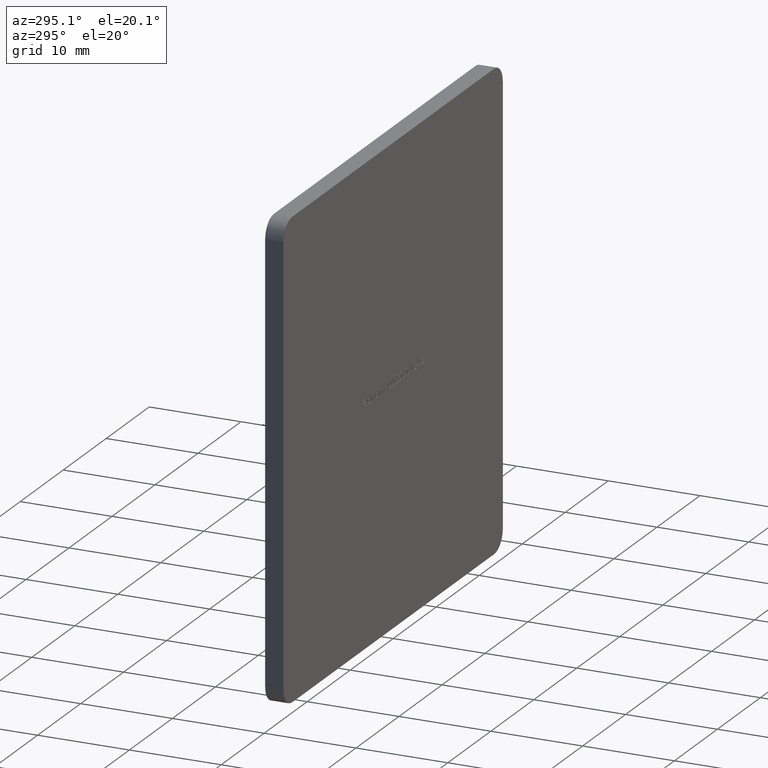
[diagram: clean part render]
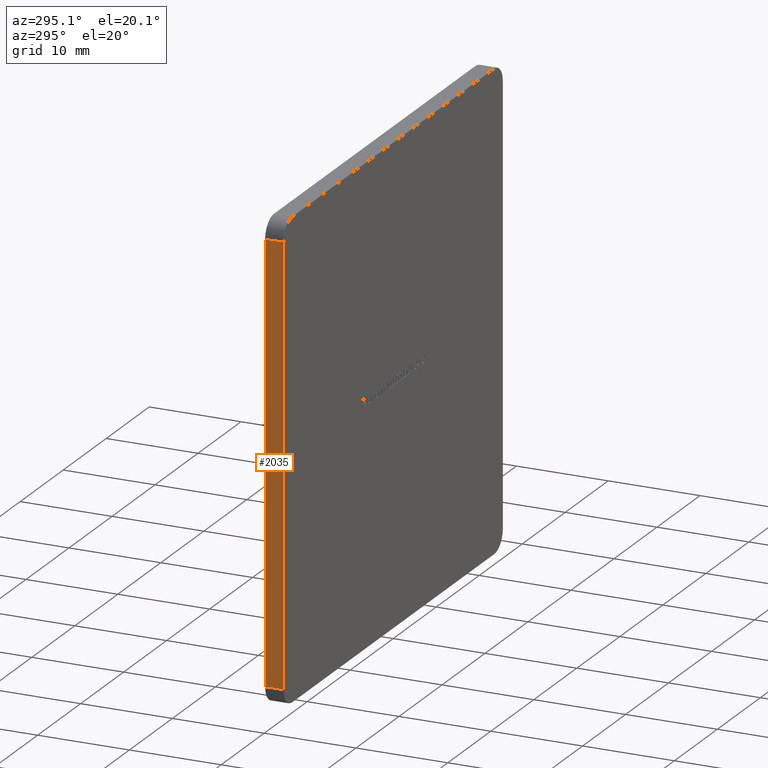
[diagram: same view with one face highlighted and labeled with its STEP entity id]
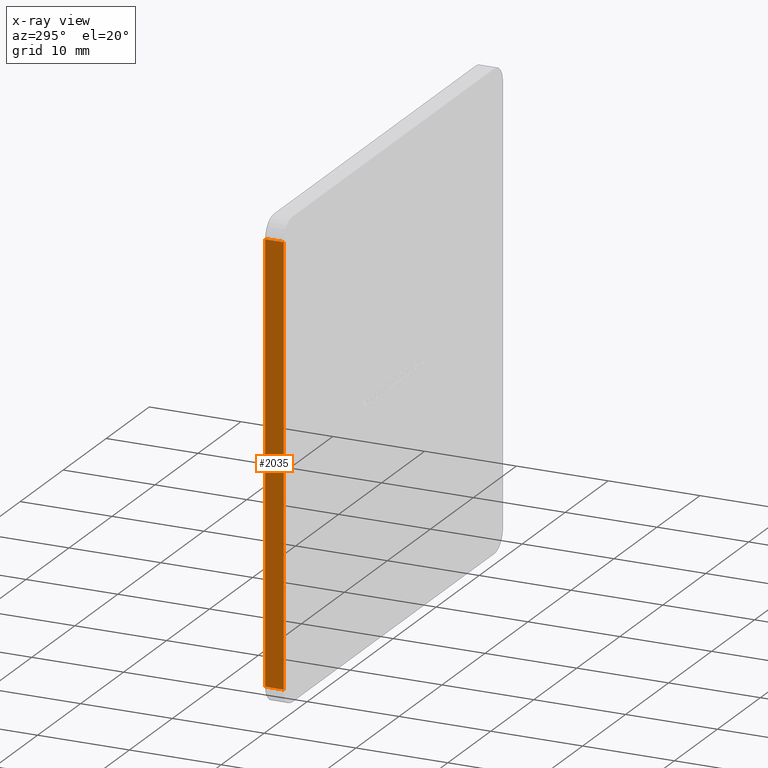
[diagram: x-ray of the same camera — body ghosted, the highlighted face saturated]
A machine part, auxiliary view. The second image highlights one B-rep face of the part: STEP entity #2035.
The next image is the same camera in x-ray: the body ghosted, the highlighted face saturated — about 0% of this face is hidden behind the body in this view.
In plain terms, the highlighted planar face has unit normal (1, 0, -0).
Its self-contained STEP definition (entity closure, byte-faithful):
#123 = CARTESIAN_POINT ( 'NONE',  ( -25.49999999999999600, 2.000000000000000000, -25.49999999999999300 ) ) ;
#599 = CARTESIAN_POINT ( 'NONE',  ( -25.49999999999999600, 2.000000000000000000, -23.49999999999999300 ) ) ;
#1437 = VERTEX_POINT ( 'NONE', #10139 ) ;
#1493 = ORIENTED_EDGE ( 'NONE', *, *, #16241, .T. ) ;
#1629 = VERTEX_POINT ( 'NONE', #7269 ) ;
#2035 = ADVANCED_FACE ( 'NONE', ( #3895 ), #9102, .F. ) ;
#2253 = CARTESIAN_POINT ( 'NONE',  ( -25.49999999999999600, 0.0000000000000000000, -25.49999999999999300 ) ) ;
#3214 = VERTEX_POINT ( 'NONE', #599 ) ;
#3592 = VECTOR ( 'NONE', #14586, 1000.000000000000000 ) ;
#3765 = DIRECTION ( 'NONE',  ( 0.0000000000000000000, -1.000000000000000000, 0.0000000000000000000 ) ) ;
#3870 = ORIENTED_EDGE ( 'NONE', *, *, #4353, .T. ) ;
#3895 = FACE_OUTER_BOUND ( 'NONE', #10625, .T. ) ;
#4068 = LINE ( 'NONE', #2253, #12184 ) ;
#4249 = EDGE_CURVE ( 'NONE', #1437, #10103, #10362, .T. ) ;
#4353 = EDGE_CURVE ( 'NONE', #3214, #1629, #9552, .T. ) ;
#4375 = DIRECTION ( 'NONE',  ( -0.0000000000000000000, 1.000000000000000000, -0.0000000000000000000 ) ) ;
#6386 = CARTESIAN_POINT ( 'NONE',  ( -25.49999999999999600, 2.000000000000000000, -23.49999999999999300 ) ) ;
#6515 = DIRECTION ( 'NONE',  ( -1.360567432138672600E-016, 0.0000000000000000000, -1.000000000000000000 ) ) ;
#7269 = CARTESIAN_POINT ( 'NONE',  ( -25.49999999999999600, 0.0000000000000000000, -23.49999999999999300 ) ) ;
#7520 = EDGE_CURVE ( 'NONE', #3214, #10103, #8268, .T. ) ;
#7712 = CARTESIAN_POINT ( 'NONE',  ( -25.49999999999999600, 2.000000000000000000, -25.49999999999999300 ) ) ;
#8268 = LINE ( 'NONE', #7712, #3592 ) ;
#8996 = DIRECTION ( 'NONE',  ( 1.000000000000000000, 0.0000000000000000000, -1.360567432138672600E-016 ) ) ;
#9102 = PLANE ( 'NONE',  #14794 ) ;
#9552 = LINE ( 'NONE', #6386, #11590 ) ;
#9954 = VECTOR ( 'NONE', #4375, 1000.000000000000000 ) ;
#10103 = VERTEX_POINT ( 'NONE', #11578 ) ;
#10139 = CARTESIAN_POINT ( 'NONE',  ( -25.49999999999998900, 0.0000000000000000000, 23.49999999999999600 ) ) ;
#10362 = LINE ( 'NONE', #14743, #9954 ) ;
#10469 = DIRECTION ( 'NONE',  ( 1.360567432138672600E-016, 0.0000000000000000000, 1.000000000000000000 ) ) ;
#10625 = EDGE_LOOP ( 'NONE', ( #1493, #16074, #13810, #3870 ) ) ;
#11578 = CARTESIAN_POINT ( 'NONE',  ( -25.49999999999998900, 2.000000000000000000, 23.49999999999999600 ) ) ;
#11590 = VECTOR ( 'NONE', #3765, 1000.000000000000000 ) ;
#12184 = VECTOR ( 'NONE', #10469, 1000.000000000000000 ) ;
#13810 = ORIENTED_EDGE ( 'NONE', *, *, #7520, .F. ) ;
#14586 = DIRECTION ( 'NONE',  ( 1.360567432138672600E-016, 0.0000000000000000000, 1.000000000000000000 ) ) ;
#14743 = CARTESIAN_POINT ( 'NONE',  ( -25.49999999999998900, 2.000000000000000000, 23.49999999999999600 ) ) ;
#14794 = AXIS2_PLACEMENT_3D ( 'NONE', #123, #8996, #6515 ) ;
#16074 = ORIENTED_EDGE ( 'NONE', *, *, #4249, .T. ) ;
#16241 = EDGE_CURVE ( 'NONE', #1629, #1437, #4068, .T. ) ;